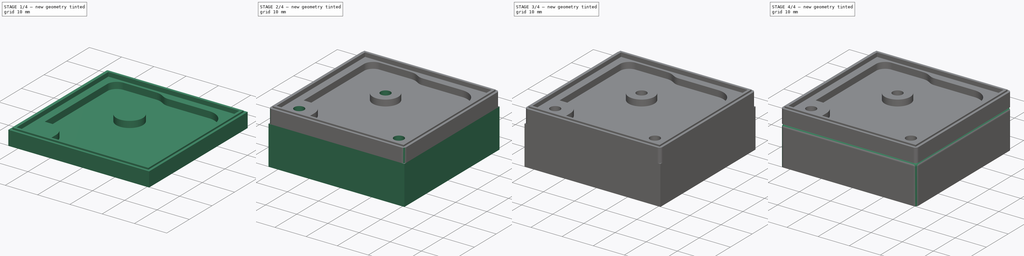
[diagram: build sequence overview — one tinted view per stage of 4, left to right]
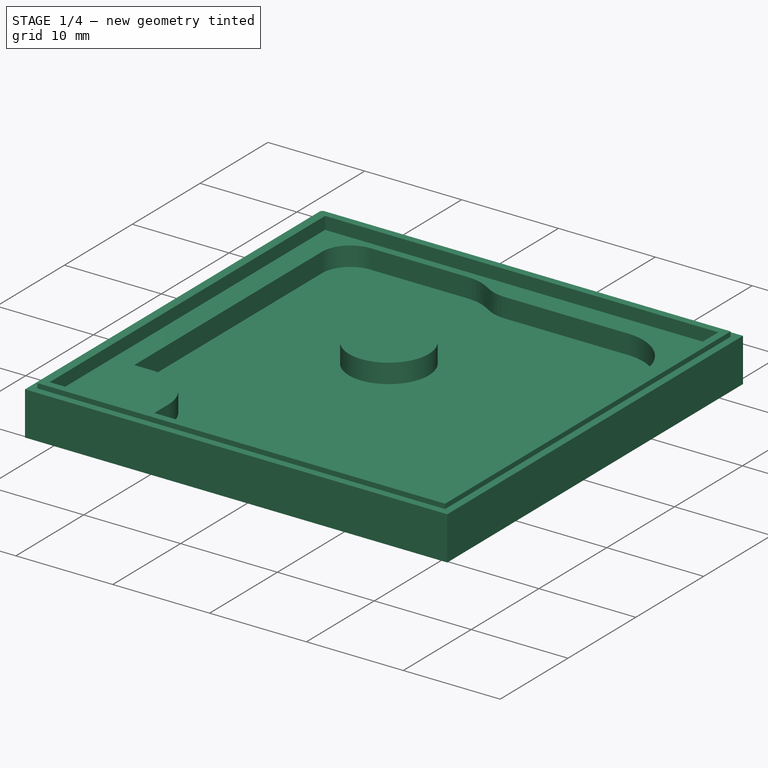
[diagram: stage 1 of 4 — iso view after this stage's code; geometry added in this stage tinted green]
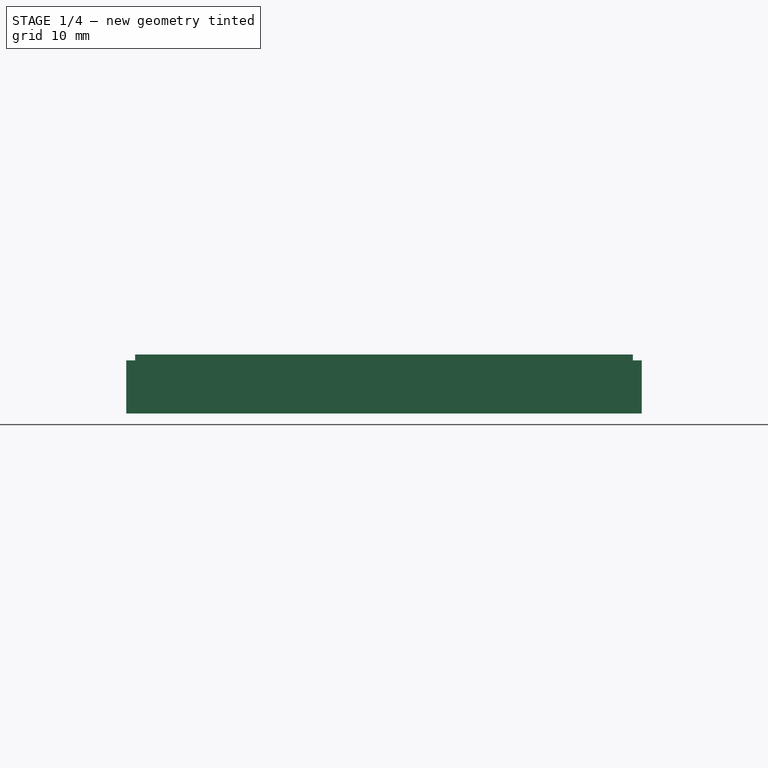
[diagram: stage 1 of 4 — front view after this stage's code; geometry added in this stage tinted green]
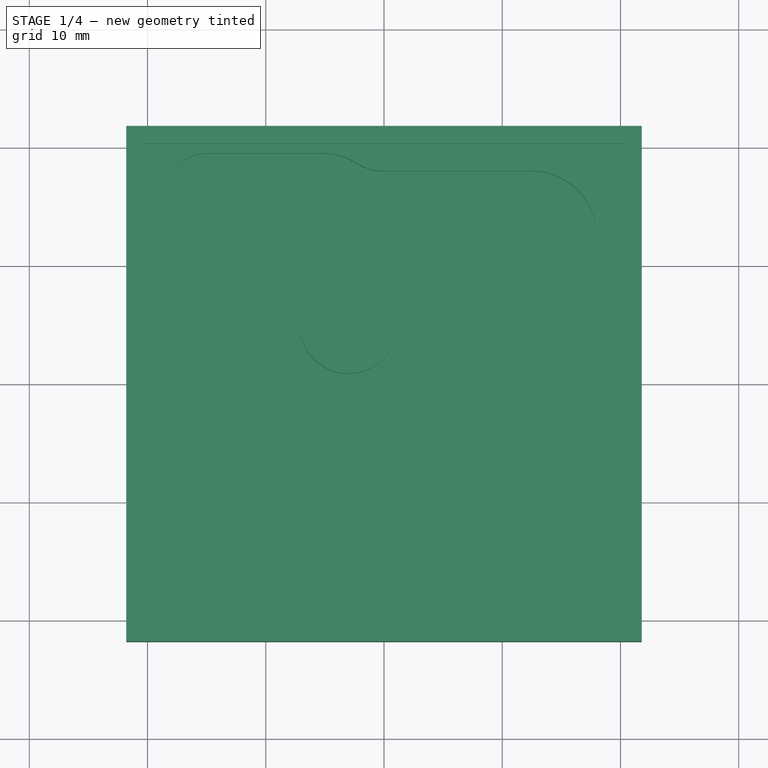
[diagram: stage 1 of 4 — top view after this stage's code; geometry added in this stage tinted green]
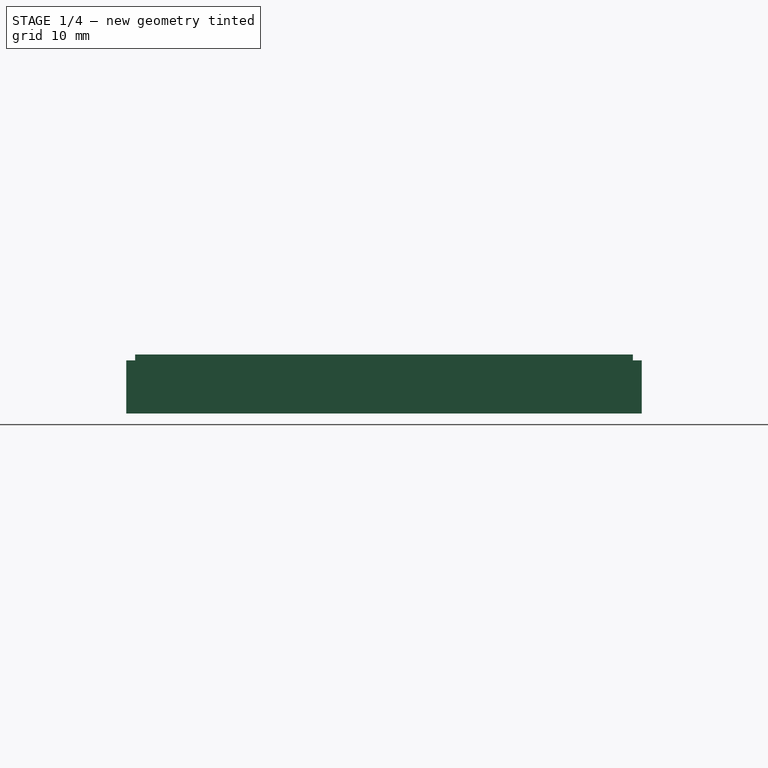
[diagram: stage 1 of 4 — right view after this stage's code; geometry added in this stage tinted green]
FCSTD DOCUMENT  (FreeCAD 1.0R39319 (Git))
Label: PTTButton
License: All rights reserved
LicenseURL: https://en.wikipedia.org/wiki/All_rights_reserved
objects: Part::Feature×75, Sketcher::SketchObject×12, App::Part×9, PartDesign::Pocket×6, PartDesign::Pad×5, PartDesign::Fillet×2, PartDesign::Body×2, Spreadsheet::Sheet×1, PartDesign::Hole×1, PartDesign::CoordinateSystem×1
note: 144 computed .brp shape members not serialized (recipe doc carries the construction recipe); baked Part::Feature solids carry a one-line shape summary decoded from their .brp

FEATURE [Sketcher::SketchObject] Sketch
  ArcFitTolerance = 1e-06
  AttachmentSupport = -> [XY_Plane012]
  FullyConstrained = true
  MakeInternals = false
  MapMode = 5
  expr: Constraints[8] = 40 mm + Spreadsheet.Tolleranz * 2 + Spreadsheet.Materialstaerke * 2
  expr: Constraints[9] = 40 mm + Spreadsheet.Tolleranz * 2 + Spreadsheet.Materialstaerke * 2
  sketch-geometry (9):
    g0: LineSegment StartX=-21.8 StartY=31.8 StartZ=0 EndX=-21.8 EndY=-11.8 EndZ=0
    g1: LineSegment StartX=-21.8 StartY=-11.8 StartZ=0 EndX=21.8 EndY=-11.8 EndZ=0
    g2: LineSegment StartX=21.8 StartY=-11.8 StartZ=0 EndX=21.8 EndY=31.8 EndZ=0
    g3: LineSegment StartX=21.8 StartY=31.8 StartZ=0 EndX=-21.8 EndY=31.8 EndZ=0
    g4: LineSegment [constr] StartX=-20 StartY=30 StartZ=0 EndX=-20 EndY=-10 EndZ=0
    g5: LineSegment [constr] StartX=-20 StartY=-10 StartZ=0 EndX=20 EndY=-10 EndZ=0
    g6: LineSegment [constr] StartX=20 StartY=-10 StartZ=0 EndX=20 EndY=30 EndZ=0
    g7: LineSegment [constr] StartX=20 StartY=30 StartZ=0 EndX=-20 EndY=30 EndZ=0
    g8: LineSegment [constr] StartX=-50 StartY=10 StartZ=0 EndX=50 EndY=10 EndZ=0
  constraints (24):
    c: Coincident(g0,g1)
    c: Coincident(g1,g2)
    c: Coincident(g2,g3)
    c: Coincident(g3,g0)
    c: Horizontal(g1)
    c: Vertical(g6)
    c: DistanceX(g-1,g4) = -20
    c: DistanceX(g5,g5) = 40
    c: DistanceX(g3,g3) = 43.6
    c: DistanceY(g0,g0) = 43.6
    c: Symmetric(g0,g2,g-2)
    c: DistanceY(g-1,g8) = 10
    c: Symmetric(g8,g8,g-2)
    c: DistanceX(g8,g8) = 100
    c: Symmetric(g0,g0,g8)
    c: Coincident(g4,g7)
    c: Coincident(g6,g7)
    c: Coincident(g5,g6)
    c: Coincident(g4,g5)
    c: Horizontal(g7)
    c: Horizontal(g5)
    c: Symmetric(g4,g4,g8)
    c: DistanceY(g4,g4) = 40
    c: Vertical(g2)
FEATURE [PartDesign::Pad] Pad
  Direction = (0,0,1)
  Length = 4.5
  Length2 = 10
  Profile = -> Sketch
  ReferenceAxis = -> Sketch [N_Axis]
  Refine = true
  Suppressed = false
  Type = 0
  expr: Length = Spreadsheet.Materialstaerke + 4 mm - 1 mm
FEATURE [Spreadsheet::Sheet] Spreadsheet
  cells = A1='Materialstärke; B1(Materialstaerke)==1.5 mm; A2='Höhe; B2(Hoehe)==10 mm; A3='PCB Tolleranz; B3(Tolleranz)==0.3 mm; A4='Insert Durchmesser; B4(Insert)==4.4 mm; A5='Insert Wanddicke; B5(InsertWidth)==2 mm; A6='Schraubenruchmesser; B6(Schraubendurchmesser)==3.2 mm; A7='Insert Tiefe; B7(InsertTiefe)==6 mm
FEATURE [Sketcher::SketchObject] Sketch004
  ArcFitTolerance = 1e-06
  AttachmentSupport = -> [Pocket001]
  ExternalGeometry = -> [Pocket001]
  FullyConstrained = false
  MakeInternals = false
  MapMode = 5
  Placement = pos=(-2.6e-15,31.8,0) rot=(0,0.707107,0.707107;3.14159rad)
  sketch-geometry (12):
    g0: LineSegment StartX=-17.4558 StartY=-5.07723 StartZ=0 EndX=-17.4558 EndY=-12.5 EndZ=0
    g1: LineSegment StartX=-2.55581 StartY=-12.5 StartZ=0 EndX=-2.55581 EndY=-5.07723 EndZ=0
    g2: LineSegment StartX=5.35849 StartY=-9.5 StartZ=0 EndX=5.35849 EndY=-12.5 EndZ=0
    g3: LineSegment StartX=5.35849 StartY=-12.5 StartZ=0 EndX=14.6585 EndY=-12.5 EndZ=0
    g4: LineSegment StartX=14.6585 StartY=-12.5 StartZ=0 EndX=14.6585 EndY=-9.5 EndZ=0
    g5: LineSegment StartX=13.1585 StartY=-8 StartZ=0 EndX=6.85849 EndY=-8 EndZ=0
    g6: ArcOfCircle CenterX=6.85849 CenterY=-9.5 CenterZ=0 NormalX=0 NormalY=0 NormalZ=1 AngleXU=0 Radius=1.5 StartAngle=1.5708 EndAngle=3.14159
    g7: ArcOfCircle CenterX=13.1585 CenterY=-9.5 CenterZ=0 NormalX=0 NormalY=0 NormalZ=1 AngleXU=0 Radius=1.5 StartAngle=0 EndAngle=1.5708
    g8: LineSegment StartX=-17.4558 StartY=-12.5 StartZ=0 EndX=-2.55581 EndY=-12.5 EndZ=0
    g9: ArcOfCircle CenterX=-4.13304 CenterY=-5.07723 CenterZ=0 NormalX=0 NormalY=0 NormalZ=1 AngleXU=0 Radius=1.57723 StartAngle=0 EndAngle=1.5708
    g10: ArcOfCircle CenterX=-15.8786 CenterY=-5.07723 CenterZ=0 NormalX=0 NormalY=0 NormalZ=1 AngleXU=0 Radius=1.57723 StartAngle=1.5708 EndAngle=3.14159
    g11: LineSegment StartX=-15.8786 StartY=-3.5 StartZ=0 EndX=-4.13304 EndY=-3.5 EndZ=0
  constraints (29):
    c: Vertical(g0)
    c: Vertical(g1)
    c: Coincident(g2,g3)
    c: Coincident(g3,g4)
    c: Vertical(g2)
    c: Vertical(g4)
    c: Horizontal(g3)
    c: Horizontal(g5)
    c: PointOnObject(g3,g-3)
    c: Tangent(g2,g6) = -1.5708
    c: Tangent(g5,g6) = -1.5708
    c: Tangent(g5,g7) = -1.5708
    c: Tangent(g4,g7) = -1.5708
    c: PointOnObject(g1,g-3)
    c: PointOnObject(g0,g-3)
    c: Coincident(g8,g0)
    c: Coincident(g8,g1)
    c: Horizontal(g6,g7)
    c: DistanceX(g2,g4) = 9.3
    c: Radius(g6) = 1.5
    c: DistanceX(g0,g1) = 14.9
    c: DistanceY(g5,g-1) = 8
    c: DistanceY(g9,g-1) = 3.5
    c: Tangent(g9,g1) = -1.5708
    c: Horizontal(g11)
    c: Tangent(g11,g9) = 1.5708
    c: Equal(g10,g9)
    c: Tangent(g0,g10) = -1.5708
    c: Tangent(g11,g10) = 1.5708
FEATURE [Sketcher::SketchObject] Sketch005
  ArcFitTolerance = 1e-06
  AttachmentSupport = -> [Pad]
  ExternalGeometry = -> [Pad]
  FullyConstrained = true
  MakeInternals = false
  MapMode = 5
  Placement = pos=(0,0,4.5) rot=(0,0,1;0rad)
  expr: Constraints[12] = Spreadsheet.Materialstaerke
  expr: Constraints[7] = Spreadsheet.Materialstaerke
  sketch-geometry (5):
    g0: LineSegment StartX=-20.3 StartY=-10.3 StartZ=0 EndX=-20.3 EndY=30.3 EndZ=0
    g1: LineSegment StartX=-20.3 StartY=30.3 StartZ=0 EndX=20.3 EndY=30.3 EndZ=0
    g2: LineSegment StartX=20.3 StartY=30.3 StartZ=0 EndX=20.3 EndY=-10.3 EndZ=0
    g3: LineSegment StartX=20.3 StartY=-10.3 StartZ=0 EndX=-20.3 EndY=-10.3 EndZ=0
    g4: LineSegment [constr] StartX=-50 StartY=10 StartZ=0 EndX=50 EndY=10 EndZ=0
  constraints (13):
    c: Coincident(g0,g1)
    c: Coincident(g1,g2)
    c: Coincident(g2,g3)
    c: Coincident(g3,g0)
    c: Vertical(g2)
    c: Horizontal(g1)
    c: Symmetric(g2,g0,g-2)
    c: DistanceX(g2,g-5) = 1.5
    c: Distance(g4) = 100
    c: Symmetric(g4,g4,g-2)
    c: DistanceY(g-1,g4) = 10
    c: Symmetric(g0,g0,g4)
    c: DistanceY(g0,g-4) = 1.5
FEATURE [PartDesign::Pocket] Pocket003
  BaseFeature = -> Pad
  Direction = (0,0,-1)
  Length = 0.8
  Length2 = 5
  Profile = -> Sketch005
  ReferenceAxis = -> Sketch005 [N_Axis]
  Refine = true
  Suppressed = false
  Type = 0
  expr: Length = 0.8 mm
FEATURE [Sketcher::SketchObject] Sketch010
  ArcFitTolerance = 1e-06
  AttachmentSupport = -> [Pocket003]
  ExternalGeometry = -> [Pocket003]
  FullyConstrained = true
  MakeInternals = false
  MapMode = 5
  Placement = pos=(0,0,4.5) rot=(0,0,1;0rad)
  expr: Constraints[10] = Spreadsheet.Materialstaerke / 2
  expr: Constraints[8] = Spreadsheet.Materialstaerke / 2
  expr: Constraints[9] = Spreadsheet.Materialstaerke / 2
  sketch-geometry (8):
    g0: LineSegment StartX=-21.05 StartY=31.05 StartZ=0 EndX=-21.05 EndY=-11.05 EndZ=0
    g1: LineSegment StartX=-21.05 StartY=-11.05 StartZ=0 EndX=21.05 EndY=-11.05 EndZ=0
    g2: LineSegment StartX=21.05 StartY=-11.05 StartZ=0 EndX=21.05 EndY=31.05 EndZ=0
    g3: LineSegment StartX=21.05 StartY=31.05 StartZ=0 EndX=-21.05 EndY=31.05 EndZ=0
    g4: LineSegment StartX=-20.3 StartY=30.3 StartZ=0 EndX=-20.3 EndY=-10.3 EndZ=0
    g5: LineSegment StartX=-20.3 StartY=-10.3 StartZ=0 EndX=20.3 EndY=-10.3 EndZ=0
    g6: LineSegment StartX=20.3 StartY=-10.3 StartZ=0 EndX=20.3 EndY=30.3 EndZ=0
    g7: LineSegment StartX=20.3 StartY=30.3 StartZ=0 EndX=-20.3 EndY=30.3 EndZ=0
  constraints (21):
    c: Coincident(g0,g1)
    c: Coincident(g1,g2)
    c: Coincident(g2,g3)
    c: Coincident(g3,g0)
    c: Vertical(g0)
    c: Vertical(g2)
    c: Horizontal(g1)
    c: Symmetric(g0,g2,g-2)
    c: DistanceX(g-4,g0) = 0.75
    c: DistanceY(g2,g-6) = 0.75
    c: DistanceY(g-6,g1) = 0.75
    c: Coincident(g4,g5)
    c: Coincident(g5,g6)
    c: Coincident(g6,g7)
    c: Coincident(g7,g4)
    c: Vertical(g4)
    c: Vertical(g6)
    c: Horizontal(g5)
    c: Horizontal(g7)
    c: Coincident(g4,g-8)
    c: Coincident(g5,g-10)
FEATURE [PartDesign::Pad] Pad002  label="Kante001"
  BaseFeature = -> Pocket003
  Direction = (0,0,1)
  Length = 0.5
  Length2 = 10
  Profile = -> Sketch010
  ReferenceAxis = -> Sketch010 [N_Axis]
  Refine = true
  Suppressed = false
  Type = 0
FEATURE [PartDesign::Pocket] Pocket007
  BaseFeature = -> Pad002
  Direction = (0,0,-1)
  Length = 2
  Length2 = 5
  Profile = -> Sketch006
  ReferenceAxis = -> Sketch006 [N_Axis]
  Refine = true
  Suppressed = false
  Type = 0
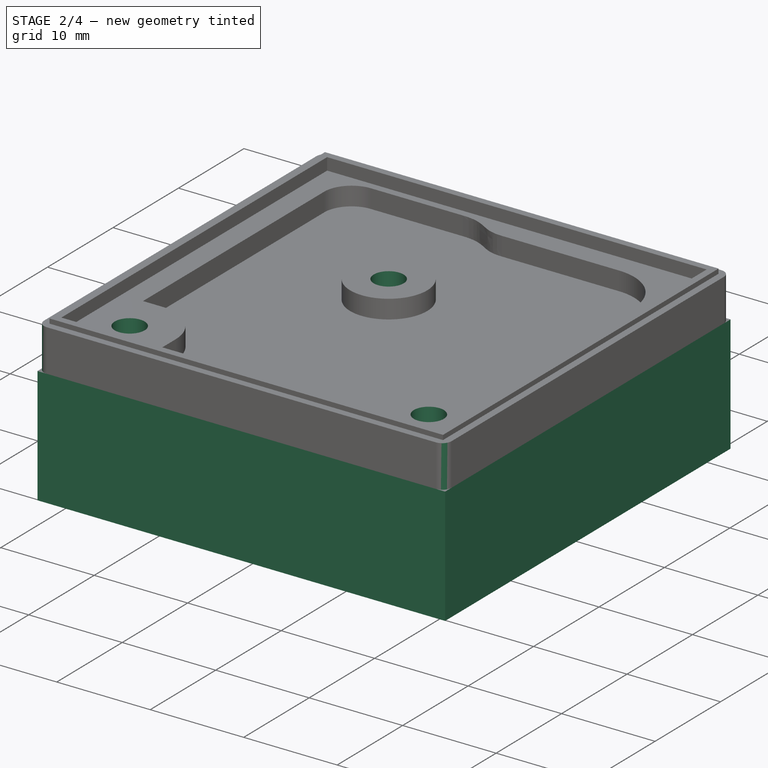
[diagram: stage 2 of 4 — iso view after this stage's code; geometry added in this stage tinted green]
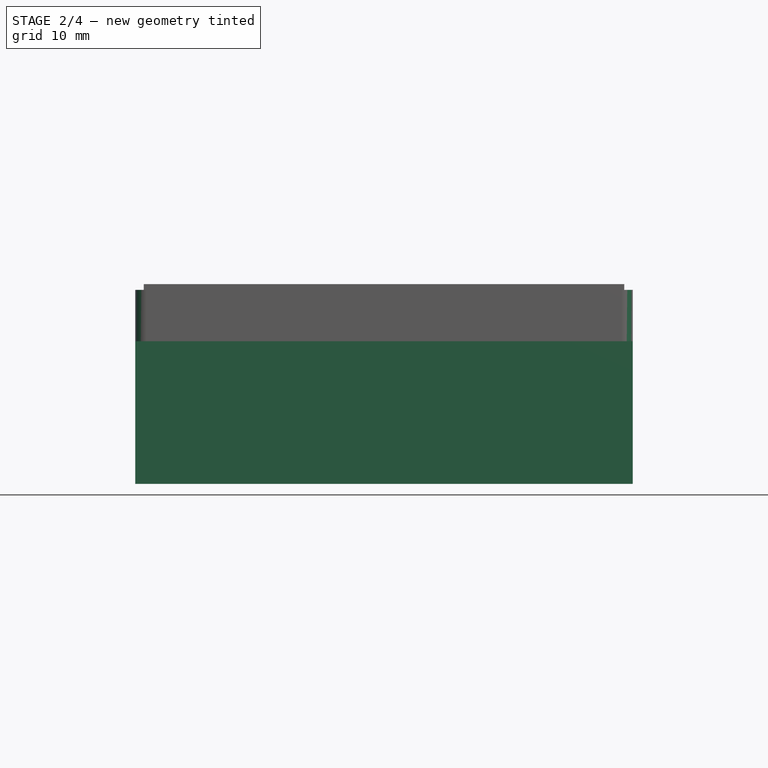
[diagram: stage 2 of 4 — front view after this stage's code; geometry added in this stage tinted green]
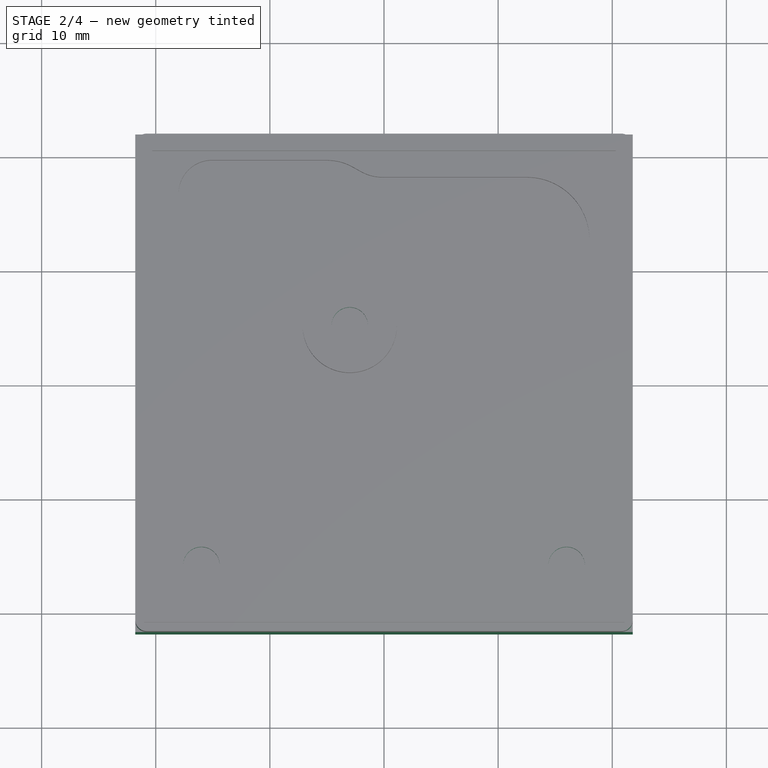
[diagram: stage 2 of 4 — top view after this stage's code; geometry added in this stage tinted green]
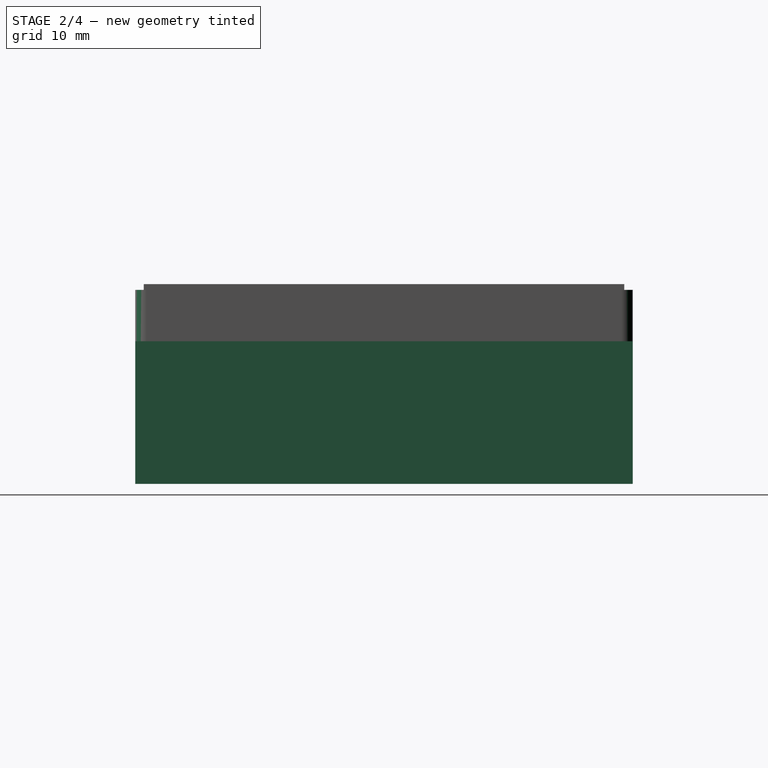
[diagram: stage 2 of 4 — right view after this stage's code; geometry added in this stage tinted green]
FEATURE [Sketcher::SketchObject] Sketch001
  ArcFitTolerance = 1e-06
  AttachmentSupport = -> [XY_Plane013]
  FullyConstrained = true
  MakeInternals = false
  MapMode = 5
  expr: Constraints[18] = 40 mm + Spreadsheet.Tolleranz * 2 + Spreadsheet.Materialstaerke * 2
  expr: Constraints[19] = 40 mm + Spreadsheet.Tolleranz * 2 + Spreadsheet.Materialstaerke * 2
  sketch-geometry (9):
    g0: LineSegment StartX=-21.8 StartY=31.8 StartZ=0 EndX=-21.8 EndY=-11.8 EndZ=0
    g1: LineSegment StartX=-21.8 StartY=-11.8 StartZ=0 EndX=21.8 EndY=-11.8 EndZ=0
    g2: LineSegment StartX=21.8 StartY=-11.8 StartZ=0 EndX=21.8 EndY=31.8 EndZ=0
    g3: LineSegment StartX=21.8 StartY=31.8 StartZ=0 EndX=-21.8 EndY=31.8 EndZ=0
    g4: LineSegment [constr] StartX=-20 StartY=30 StartZ=0 EndX=-20 EndY=-10 EndZ=0
    g5: LineSegment [constr] StartX=-20 StartY=-10 StartZ=0 EndX=20 EndY=-10 EndZ=0
    g6: LineSegment [constr] StartX=20 StartY=-10 StartZ=0 EndX=20 EndY=30 EndZ=0
    g7: LineSegment [constr] StartX=20 StartY=30 StartZ=0 EndX=-20 EndY=30 EndZ=0
    g8: LineSegment [constr] StartX=-50 StartY=10 StartZ=0 EndX=50 EndY=10 EndZ=0
  constraints (25):
    c: Coincident(g0,g1)
    c: Coincident(g1,g2)
    c: Coincident(g2,g3)
    c: Coincident(g3,g0)
    c: Vertical(g2)
    c: Horizontal(g1)
    c: Coincident(g4,g5)
    c: Coincident(g5,g6)
    c: Coincident(g6,g7)
    c: Coincident(g7,g4)
    c: Vertical(g4)
    c: Vertical(g6)
    c: Horizontal(g5)
    c: Horizontal(g7)
    c: DistanceX(g-1,g4) = -20
    c: DistanceX(g5,g5) = 40
    c: DistanceY(g6,g6) = 40
    c: DistanceY(g4) = -10
    c: DistanceX(g3,g3) = 43.6
    c: DistanceY(g0,g0) = 43.6
    c: Symmetric(g0,g2,g-2)
    c: DistanceY(g-1,g8) = 10
    c: Symmetric(g8,g8,g-2)
    c: DistanceX(g8,g8) = 100
    c: Symmetric(g0,g0,g8)
FEATURE [PartDesign::Pad] Pad001  label="Block"
  Direction = (0,0,1)
  Length = 12.5
  Length2 = 10
  Profile = -> Sketch001
  ReferenceAxis = -> Sketch001 [N_Axis]
  Refine = true
  Reversed = true
  Suppressed = false
  Type = 0
  expr: Length = Spreadsheet.Hoehe + Spreadsheet.Materialstaerke + 1 mm
FEATURE [PartDesign::Hole] Hole
  BaseFeature = -> Pocket007
  CustomThreadClearance = 0
  Depth = 25
  DepthType = 0
  Diameter = 3.2
  DrillForDepth = false
  DrillPoint = 1
  DrillPointAngle = 118
  HoleCutCountersinkAngle = 70
  HoleCutCustomValues = false
  HoleCutDepth = 0
  HoleCutDiameter = 6
  HoleCutType = 2
  ModelThread = false
  Profile = -> Sketch007
  Refine = true
  Suppressed = false
  Tapered = false
  TaperedAngle = 90
  ThreadClass = 0
  ThreadDepth = 25
  ThreadDepthType = 0
  ThreadDirection = 0
  ThreadFit = 0
  ThreadSize = 0
  ThreadType = 0
  Threaded = false
  UseCustomThreadClearance = false
  expr: Diameter = Spreadsheet.Schraubendurchmesser
FEATURE [PartDesign::Body] Body001  label="Gehäuseoberteil"
  AllowCompound = false
  Group = -> [Sketch001,Pad001,Sketch002,Pocket,Sketch003,Pocket001,Sketch004,Sketch008,Sketch009,Pocket005,Pocket006,Pad003,Pad004,Fillet]
  Origin = -> Origin013
  Placement = pos=(0,0,11.5) rot=(0,0,1;0rad)
  Tip = -> Fillet
  expr: .Placement.Base.z = Spreadsheet.Hoehe + Spreadsheet.Materialstaerke
FEATURE [PartDesign::Fillet] Fillet001
  Base = -> Hole [Edge2,Edge8,Edge5,Edge1]
  BaseFeature = -> Hole
  Radius = 1
  Refine = true
  SupportTransform = false
  Suppressed = false
  UseAllEdges = false
FEATURE [PartDesign::Body] Body  label="Gehäuseunterteil"
  AllowCompound = false
  Group = -> [Sketch,Pad,Sketch005,Pocket003,Sketch006,Sketch007,Sketch010,Pad002,Pocket007,Hole,Fillet001]
  Origin = -> Origin012
  Placement = pos=(0,0,-5.5) rot=(0,0,1;0rad)
  Tip = -> Fillet001
  expr: .Placement.Base.z = -Spreadsheet.Materialstaerke - 4 mm
FEATURE [PartDesign::CoordinateSystem] Local_CS_26ce
  AttacherType = Attacher::AttachEngine3D
  MapMode = 2
FEATURE [Part::Feature] Pcb_26ce
  Placement = pos=(-100,80,0) rot=(0,0,1;0rad)
  shape: bbox 40 x 40 x 1.6 mm, 42 faces (baked)
FEATURE [Sketcher::SketchObject] PCB_Sketch_26ce
  ArcFitTolerance = 1e-06
  FullyConstrained = false
  MakeInternals = false
  sketch-geometry (4):
    g0: LineSegment StartX=-20 StartY=30 StartZ=0 EndX=20 EndY=30 EndZ=0
    g1: LineSegment StartX=20 StartY=30 StartZ=0 EndX=20 EndY=-10 EndZ=0
    g2: LineSegment StartX=20 StartY=-10 StartZ=0 EndX=-20 EndY=-10 EndZ=0
    g3: LineSegment StartX=-20 StartY=-10 StartZ=0 EndX=-20 EndY=30 EndZ=0
  constraints (4):
    c: Coincident(g2,g3)
    c: Coincident(g0,g3)
    c: Coincident(g1,g2)
    c: Coincident(g0,g1)
FEATURE [App::Part] Board_Geoms_26ce
  Group = -> [Pcb_26ce,PCB_Sketch_26ce]
  Origin = -> Origin
FEATURE [Part::Feature] Part__Feature  label="part"
  shape: bbox 0.2045 x 0.2045 x 0.003 mm, 3 faces (baked)
FEATURE [Part::Feature] Part__Feature001  label="part001"
  shape: bbox 4.09 x 4.09 x 1.6 mm, 6 faces (baked)
FEATURE [Part::Feature] Part__Feature002  label="part002"
  shape: bbox 0.508 x 0.304 x 0.051 mm, 6 faces (baked)
FEATURE [Part::Feature] Part__Feature003  label="part003"
  shape: bbox 0.508 x 0.304 x 0.051 mm, 6 faces (baked)
FEATURE [Part::Feature] Part__Feature004  label="part004"
  shape: bbox 0.508 x 0.304 x 0.051 mm, 6 faces (baked)
FEATURE [Part::Feature] Part__Feature005  label="part005"
  shape: bbox 0.508 x 0.304 x 0.051 mm, 6 faces (baked)
FEATURE [Part::Feature] Part__Feature006  label="part006"
  shape: bbox 0.508 x 0.304 x 0.051 mm, 6 faces (baked)
FEATURE [Part::Feature] Part__Feature007  label="part007"
  shape: bbox 0.508 x 0.304 x 0.051 mm, 6 faces (baked)
FEATURE [Part::Feature] Part__Feature008  label="part008"
  shape: bbox 0.304 x 0.508 x 0.051 mm, 6 faces (baked)
FEATURE [Part::Feature] Part__Feature009  label="part009"
  shape: bbox 0.304 x 0.508 x 0.051 mm, 6 faces (baked)
FEATURE [Part::Feature] Part__Feature010  label="part010"
  shape: bbox 0.304 x 0.508 x 0.051 mm, 6 faces (baked)
FEATURE [Part::Feature] Part__Feature011  label="part011"
  shape: bbox 0.304 x 0.508 x 0.051 mm, 6 faces (baked)
FEATURE [Part::Feature] Part__Feature012  label="part012"
  shape: bbox 0.304 x 0.508 x 0.051 mm, 6 faces (baked)
FEATURE [Part::Feature] Part__Feature013  label="part013"
  shape: bbox 0.304 x 0.508 x 0.051 mm, 6 faces (baked)
FEATURE [Part::Feature] Part__Feature014  label="part014"
  shape: bbox 0.508 x 0.304 x 0.051 mm, 6 faces (baked)
FEATURE [Part::Feature] Part__Feature015  label="part015"
  shape: bbox 0.508 x 0.304 x 0.051 mm, 6 faces (baked)
FEATURE [Part::Feature] Part__Feature016  label="part016"
  shape: bbox 0.508 x 0.304 x 0.051 mm, 6 faces (baked)
FEATURE [Part::Feature] Part__Feature017  label="part017"
  shape: bbox 0.508 x 0.304 x 0.051 mm, 6 faces (baked)
FEATURE [Part::Feature] Part__Feature018  label="part018"
  shape: bbox 0.508 x 0.304 x 0.051 mm, 6 faces (baked)
FEATURE [Part::Feature] Part__Feature019  label="part019"
  shape: bbox 0.508 x 0.304 x 0.051 mm, 6 faces (baked)
FEATURE [Part::Feature] Part__Feature020  label="part020"
  shape: bbox 0.304 x 0.508 x 0.051 mm, 6 faces (baked)
FEATURE [Part::Feature] Part__Feature021  label="part021"
  shape: bbox 0.304 x 0.508 x 0.051 mm, 6 faces (baked)
FEATURE [Part::Feature] Part__Feature022  label="part022"
  shape: bbox 0.304 x 0.508 x 0.051 mm, 6 faces (baked)
FEATURE [Part::Feature] Part__Feature023  label="part023"
  shape: bbox 0.304 x 0.508 x 0.051 mm, 6 faces (baked)
FEATURE [Part::Feature] Part__Feature024  label="part024"
  shape: bbox 0.304 x 0.508 x 0.051 mm, 6 faces (baked)
FEATURE [Part::Feature] Part__Feature025  label="part025"
  shape: bbox 0.304 x 0.508 x 0.051 mm, 6 faces (baked)
FEATURE [Part::Feature] Part__Feature026  label="part026"
  shape: bbox 2.49 x 2.49 x 0.051 mm, 6 faces (baked)
FEATURE [App::Part] part  label="U4_part027_ac8224001030"
  Group = -> [Part__Feature,Part__Feature001,Part__Feature002,Part__Feature003,Part__Feature004,Part__Feature005,Part__Feature006,Part__Feature007,Part__Feature008,Part__Feature009,Part__Feature010,Part__Feature011,Part__Feature012,Part__Feature013,Part__Feature014,Part__Feature015,Part__Feature016,Part__Feature017,Part__Feature018,Part__Feature019,Part__Feature020,Part__Feature021,Part__Feature022,+4 more]
  Origin = -> Origin008
  Placement = pos=(10.4,3.7843,0) rot=(0,0,1;1.5708rad)
FEATURE [Part::Feature] Part__Feature027  label="TYPE-C-31-M-12"
  Placement = pos=(-2e-16,0,-1.3525) rot=(0,0,1;0rad)
  shape: bbox 0.25 x 0.05 x 2.38 mm, 6 faces (baked)
FEATURE [Part::Feature] Part__Feature028  label="TYPE-C-31-M-013"
  Placement = pos=(-2e-16,0,-1.3525) rot=(0,0,1;0rad)
  shape: bbox 0.25 x 0.05 x 1.88 mm, 6 faces (baked)
FEATURE [Part::Feature] Part__Feature029  label="TYPE-C-31-M-014"
  Placement = pos=(-2e-16,0,-1.3525) rot=(0,0,1;0rad)
  shape: bbox 0.25 x 0.05 x 1.88 mm, 6 faces (baked)
FEATURE [Part::Feature] Part__Feature030  label="TYPE-C-31-M-015"
  Placement = pos=(-2e-16,0,-1.3525) rot=(0,0,1;0rad)
  shape: bbox 0.25 x 0.05 x 1.88 mm, 6 faces (baked)
FEATURE [Part::Feature] Part__Feature031  label="TYPE-C-31-M-016"
  Placement = pos=(-2e-16,0,-1.3525) rot=(0,0,1;0rad)
  shape: bbox 0.25 x 0.05 x 1.88 mm, 6 faces (baked)
FEATURE [Part::Feature] Part__Feature032  label="TYPE-C-31-M-017"
  Placement = pos=(-2e-16,0,-1.3525) rot=(0,0,1;0rad)
  shape: bbox 0.25 x 0.05 x 2.38 mm, 6 faces (baked)
FEATURE [Part::Feature] Part__Feature033  label="TYPE-C-31-M-018"
  Placement = pos=(-2e-16,0,-1.3525) rot=(0,0,1;0rad)
  shape: bbox 0.25 x 0.05 x 1.88 mm, 6 faces (baked)
FEATURE [Part::Feature] Part__Feature034  label="TYPE-C-31-M-019"
  Placement = pos=(-2e-16,0,-1.3525) rot=(0,0,1;0rad)
  shape: bbox 0.25 x 0.05 x 2.38 mm, 6 faces (baked)
FEATURE [Part::Feature] Part__Feature035  label="TYPE-C-31-M-020"
  Placement = pos=(-2e-16,0,-1.3525) rot=(0,0,1;0rad)
  shape: bbox 0.25 x 0.05 x 1.88 mm, 6 faces (baked)
FEATURE [Part::Feature] Part__Feature036  label="TYPE-C-31-M-021"
  Placement = pos=(-2e-16,0,-1.3525) rot=(0,0,1;0rad)
  shape: bbox 0.25 x 0.05 x 1.88 mm, 6 faces (baked)
FEATURE [Part::Feature] Part__Feature037  label="TYPE-C-31-M-022"
  Placement = pos=(-2e-16,0,-1.3525) rot=(0,0,1;0rad)
  shape: bbox 0.25 x 0.05 x 1.88 mm, 6 faces (baked)
FEATURE [Part::Feature] Part__Feature038  label="TYPE-C-31-M-023"
  Placement = pos=(-2e-16,0,-1.3525) rot=(0,0,1;0rad)
  shape: bbox 0.25 x 0.05 x 2.38 mm, 6 faces (baked)
FEATURE [Part::Feature] Part__Feature039  label="TYPE-C-31-M-024"
  Placement = pos=(-2e-16,0,-1.3525) rot=(0,0,1;0rad)
  shape: bbox 0.25 x 0.05 x 1.88 mm, 6 faces (baked)
FEATURE [Part::Feature] Part__Feature040  label="TYPE-C-31-M-025"
  Placement = pos=(-2e-16,0,-1.3525) rot=(0,0,1;0rad)
  shape: bbox 0.25 x 0.05 x 1.88 mm, 6 faces (baked)
FEATURE [Part::Feature] Part__Feature041  label="TYPE-C-31-M-026"
  Placement = pos=(-2e-16,0,-1.3525) rot=(0,0,1;0rad)
  shape: bbox 0.25 x 0.05 x 1.88 mm, 6 faces (baked)
FEATURE [Part::Feature] Part__Feature042  label="TYPE-C-31-M-027"
  Placement = pos=(-2e-16,0,-1.3525) rot=(0,0,1;0rad)
  shape: bbox 0.25 x 0.05 x 2.38 mm, 6 faces (baked)
FEATURE [Part::Feature] Part__Feature043  label="TYPE-C-31-M-028"
  Placement = pos=(-2e-16,0,-1.3525) rot=(0,0,1;0rad)
  shape: bbox 0.25 x 0.05 x 1.88 mm, 6 faces (baked)
FEATURE [Part::Feature] Part__Feature044  label="TYPE-C-31-M-029"
  Placement = pos=(-2e-16,0,-1.3525) rot=(0,0,1;0rad)
  shape: bbox 0.25 x 0.05 x 1.88 mm, 6 faces (baked)
FEATURE [Part::Feature] Part__Feature045  label="TYPE-C-31-M-030"
  Placement = pos=(-2e-16,0,-1.3525) rot=(0,0,1;0rad)
  shape: bbox 0.25 x 0.05 x 2.38 mm, 6 faces (baked)
FEATURE [Part::Feature] Part__Feature046  label="TYPE-C-31-M-031"
  Placement = pos=(-2e-16,0,-1.3525) rot=(0,0,1;0rad)
  shape: bbox 0.25 x 0.05 x 1.88 mm, 6 faces (baked)
FEATURE [Part::Feature] Part__Feature047  label="TYPE-C-31-M-032"
  Placement = pos=(-2e-16,0,-1.3525) rot=(0,0,1;0rad)
  shape: bbox 0.25 x 0.05 x 1.88 mm, 6 faces (baked)
FEATURE [Part::Feature] Part__Feature048  label="TYPE-C-31-M-033"
  Placement = pos=(-2e-16,0,-1.3525) rot=(0,0,1;0rad)
  shape: bbox 0.25 x 0.05 x 1.88 mm, 6 faces (baked)
FEATURE [Part::Feature] Part__Feature049  label="TYPE-C-31-M-034"
  Placement = pos=(-2e-16,0,-1.3525) rot=(0,0,1;0rad)
  shape: bbox 0.25 x 0.05 x 2.38 mm, 6 faces (baked)
FEATURE [Part::Feature] Part__Feature050  label="TYPE-C-31-M-035"
  Placement = pos=(-2e-16,0,-1.3525) rot=(0,0,1;0rad)
  shape: bbox 0.25 x 0.05 x 2.38 mm, 6 faces (baked)
FEATURE [Part::Feature] Part__Feature051  label="TYPE-C-31-M-036"
  Placement = pos=(-2e-16,0,-1.3525) rot=(0,0,1;0rad)
  shape: bbox 0.2 x 0.2 x 1 mm, 6 faces (baked)
FEATURE [Part::Feature] Part__Feature052  label="TYPE-C-31-M-037"
  Placement = pos=(-2e-16,0,-1.3525) rot=(0,0,1;0rad)
  shape: bbox 0.2 x 0.2 x 1 mm, 6 faces (baked)
FEATURE [Part::Feature] Part__Feature053  label="TYPE-C-31-M-038"
  Placement = pos=(-2e-16,0,-1.3525) rot=(0,0,1;0rad)
  shape: bbox 0.2 x 0.2 x 1 mm, 6 faces (baked)
FEATURE [Part::Feature] Part__Feature054  label="TYPE-C-31-M-039"
  Placement = pos=(-2e-16,0,-1.3525) rot=(0,0,1;0rad)
  shape: bbox 0.2 x 0.2 x 1 mm, 6 faces (baked)
FEATURE [Part::Feature] Part__Feature055  label="TYPE-C-31-M-040"
  Placement = pos=(-2e-16,0,-1.3525) rot=(0,0,1;0rad)
  shape: bbox 0.2 x 0.2 x 1 mm, 6 faces (baked)
FEATURE [Part::Feature] Part__Feature056  label="TYPE-C-31-M-041"
  Placement = pos=(-2e-16,0,-1.3525) rot=(0,0,1;0rad)
  shape: bbox 0.2 x 0.2 x 1 mm, 6 faces (baked)
FEATURE [Part::Feature] Part__Feature057  label="TYPE-C-31-M-042"
  Placement = pos=(-2e-16,0,-1.3525) rot=(0,0,1;0rad)
  shape: bbox 0.2 x 0.2 x 1 mm, 6 faces (baked)
FEATURE [Part::Feature] Part__Feature058  label="TYPE-C-31-M-043"
  Placement = pos=(-2e-16,0,-1.3525) rot=(0,0,1;0rad)
  shape: bbox 0.2 x 0.2 x 1 mm, 6 faces (baked)
FEATURE [Part::Feature] Part__Feature059  label="TYPE-C-31-M-044"
  Placement = pos=(-2e-16,0,-1.3525) rot=(0,0,1;0rad)
  shape: bbox 0.2 x 0.2 x 1 mm, 6 faces (baked)
FEATURE [Part::Feature] Part__Feature060  label="TYPE-C-31-M-045"
  Placement = pos=(-2e-16,0,-1.3525) rot=(0,0,1;0rad)
  shape: bbox 0.2 x 0.2 x 1 mm, 6 faces (baked)
FEATURE [Part::Feature] Part__Feature061  label="TYPE-C-31-M-046"
  Placement = pos=(-2e-16,0,-1.3525) rot=(0,0,1;0rad)
  shape: bbox 0.2 x 0.2 x 1 mm, 6 faces (baked)
FEATURE [Part::Feature] Part__Feature062  label="TYPE-C-31-M-047"
  Placement = pos=(-2e-16,0,-1.3525) rot=(0,0,1;0rad)
  shape: bbox 0.2 x 0.2 x 1 mm, 6 faces (baked)
FEATURE [Part::Feature] Part__Feature063  label="TYPE-C-31-M-048"
  Placement = pos=(-2e-16,0,-1.3525) rot=(0,0,1;0rad)
  shape: bbox 0.2 x 0.2 x 1 mm, 6 faces (baked)
FEATURE [Part::Feature] Part__Feature064  label="TYPE-C-31-M-049"
  Placement = pos=(-2e-16,0,-1.3525) rot=(0,0,1;0rad)
  shape: bbox 0.2 x 0.2 x 1 mm, 6 faces (baked)
FEATURE [Part::Feature] Part__Feature065  label="TYPE-C-31-M-050"
  Placement = pos=(-2e-16,0,-1.3525) rot=(0,0,1;0rad)
  shape: bbox 0.2 x 0.2 x 1 mm, 6 faces (baked)
FEATURE [Part::Feature] Part__Feature066  label="TYPE-C-31-M-051"
  Placement = pos=(-2e-16,0,-1.3525) rot=(0,0,1;0rad)
  shape: bbox 0.2 x 0.2 x 1 mm, 6 faces (baked)
FEATURE [Part::Feature] Part__Feature067  label="TYPE-C-31-M-052"
  Placement = pos=(-2e-16,0,-1.3525) rot=(0,0,1;0rad)
  shape: bbox 8.94 x 3.69 x 6.525 mm, 168 faces (baked)
FEATURE [Part::Feature] Part__Feature068  label="TYPE-C-31-M-053"
  Placement = pos=(-2e-16,0,-1.3525) rot=(0,0,1;0rad)
  shape: bbox 8.949 x 4.309 x 7.314 mm, 281 faces (baked)
FEATURE [App::Part] TYPE_C_31_M_12  label="TYPE-C-31-M-054"
  Group = -> [Part__Feature027,Part__Feature028,Part__Feature029,Part__Feature030,Part__Feature031,Part__Feature032,Part__Feature033,Part__Feature034,Part__Feature035,Part__Feature036,Part__Feature037,Part__Feature038,Part__Feature039,Part__Feature040,Part__Feature041,Part__Feature042,Part__Feature043,Part__Feature044,Part__Feature045,Part__Feature046,Part__Feature047,Part__Feature048,Part__Feature049,+19 more]
  Origin = -> Origin009
FEATURE [App::Part] TYPE_C_31_M_013  label="J1_TYPE-C-31-M-055_d8c49f161c96"
  Group = -> [TYPE_C_31_M_12]
  Origin = -> Origin010
  Placement = pos=(-10,27.56,0) rot=(0,0.707107,0.707107;3.14159rad)
FEATURE [Part::Feature] Shape  label="J2_87583-2010BLF_a573260b0f5d"
  Placement = pos=(10,16.4025,0) rot=(0,0.707107,0.707107;3.14159rad)
  shape: bbox 14.5 x 14.89 x 10.37 mm, 881 faces (baked)
FEATURE [App::Part] Top_26ce
  Group = -> [part,TYPE_C_31_M_013,Shape]
  Origin = -> Origin003
FEATURE [Part::Feature] Part__Feature069  label="PG151101S11"
  shape: bbox 10.9 x 3.1 x 5.89 mm, 124 faces (baked)
FEATURE [Part::Feature] Part__Feature070  label="PG151101S012"
  shape: bbox 4.8 x 2.358 x 1.68 mm, 54 faces (baked)
FEATURE [Part::Feature] Part__Feature071  label="PG151101S013"
  shape: bbox 4.8 x 2.358 x 1.68 mm, 54 faces (baked)
FEATURE [App::Part] PG151101S11  label="SW2_PG151101S014_d0f1be47be3c"
  Group = -> [Part__Feature069,Part__Feature070,Part__Feature071]
  Origin = -> Origin011
  Placement = pos=(-0.6,3.8,-1.6) rot=(-1,0,0;1.5708rad)
FEATURE [Part::Feature] Shape001  label="SW2_KS-9 PRO3.0 FWQ_stp_d0f1be47be3c[2]"
  Placement = pos=(158,19.43,13.28) rot=(0,0,1;3.14159rad)
  shape: bbox 15.87 x 20.51 x 18.37 mm, 752 faces (baked)
FEATURE [App::Part] Bot_26ce
  Group = -> [PG151101S11,Shape001]
  Origin = -> Origin004
FEATURE [App::Part] Step_Models_26ce
  Group = -> [Top_26ce,Bot_26ce]
  Origin = -> Origin002
FEATURE [App::Part] Board_26ce  label="PTTButton"
  Group = -> [Local_CS_26ce,Board_Geoms_26ce,Step_Models_26ce]
  Origin = -> Origin001
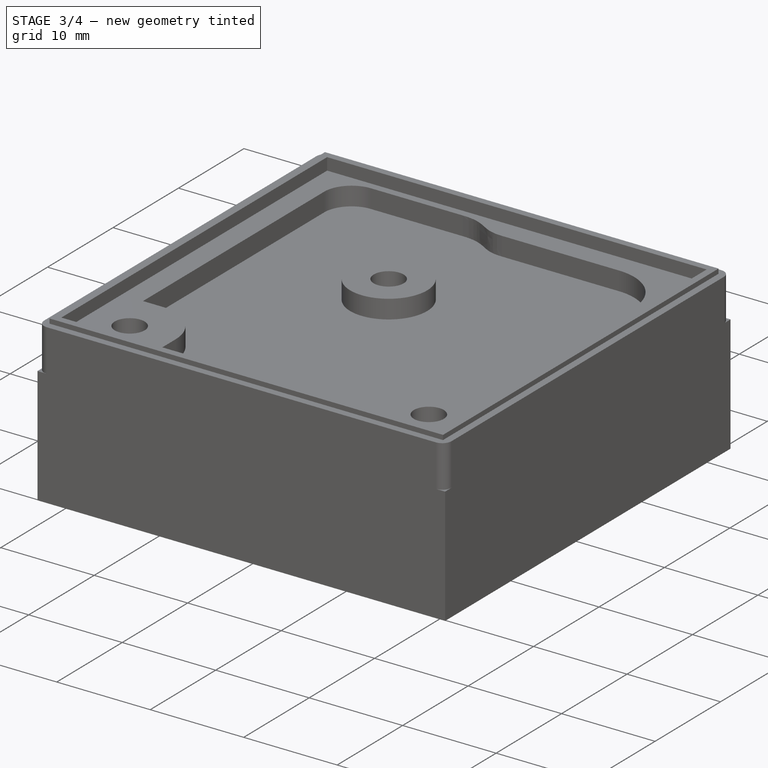
[diagram: stage 3 of 4 — iso view after this stage's code; geometry added in this stage tinted green]
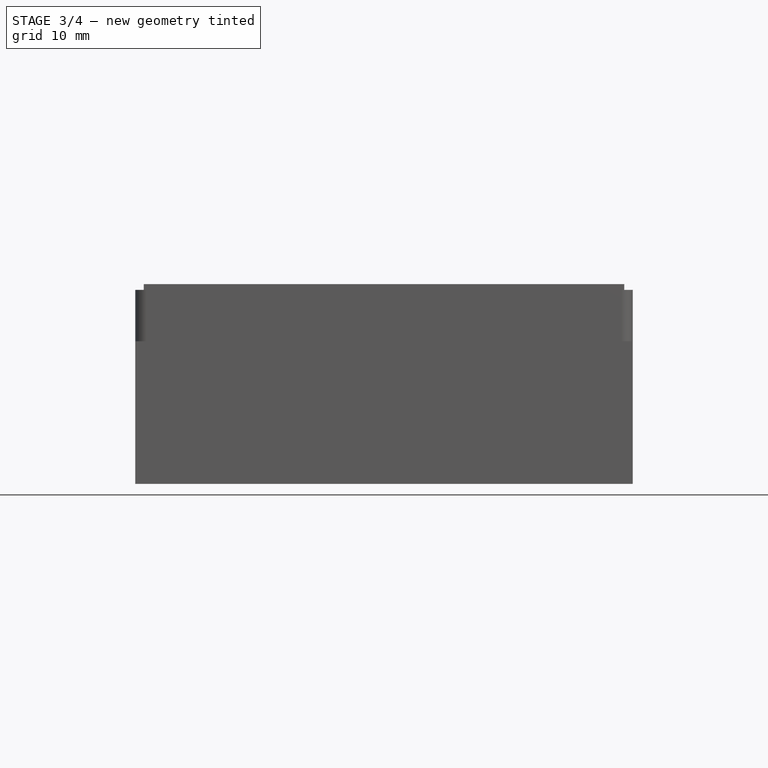
[diagram: stage 3 of 4 — front view after this stage's code; geometry added in this stage tinted green]
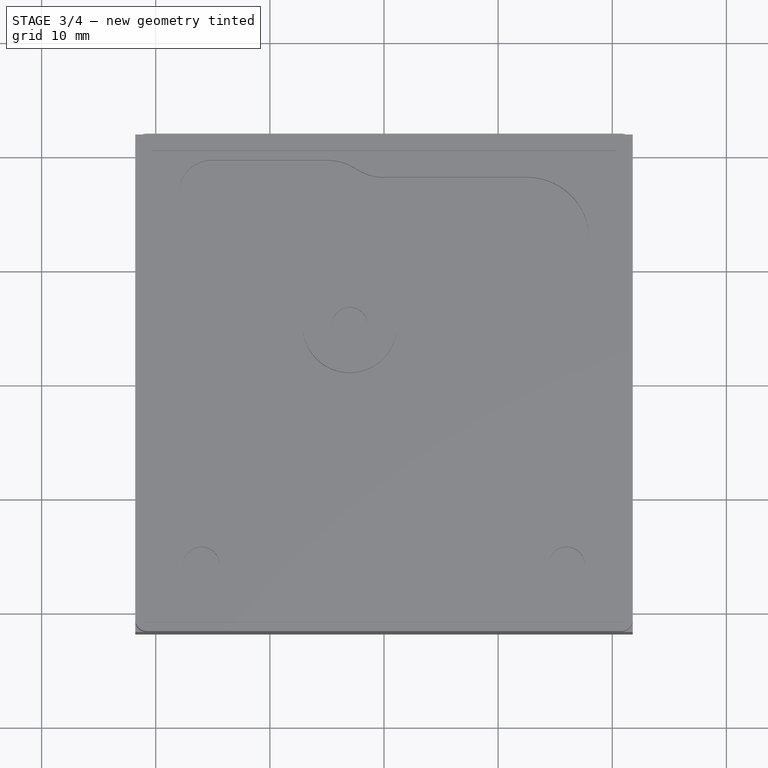
[diagram: stage 3 of 4 — top view after this stage's code; geometry added in this stage tinted green]
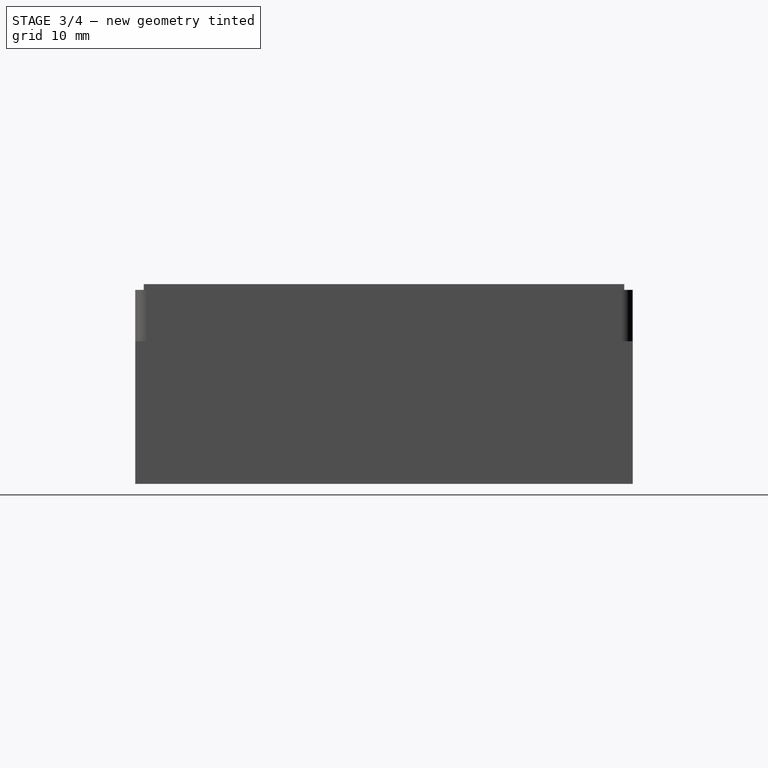
[diagram: stage 3 of 4 — right view after this stage's code; geometry added in this stage tinted green]
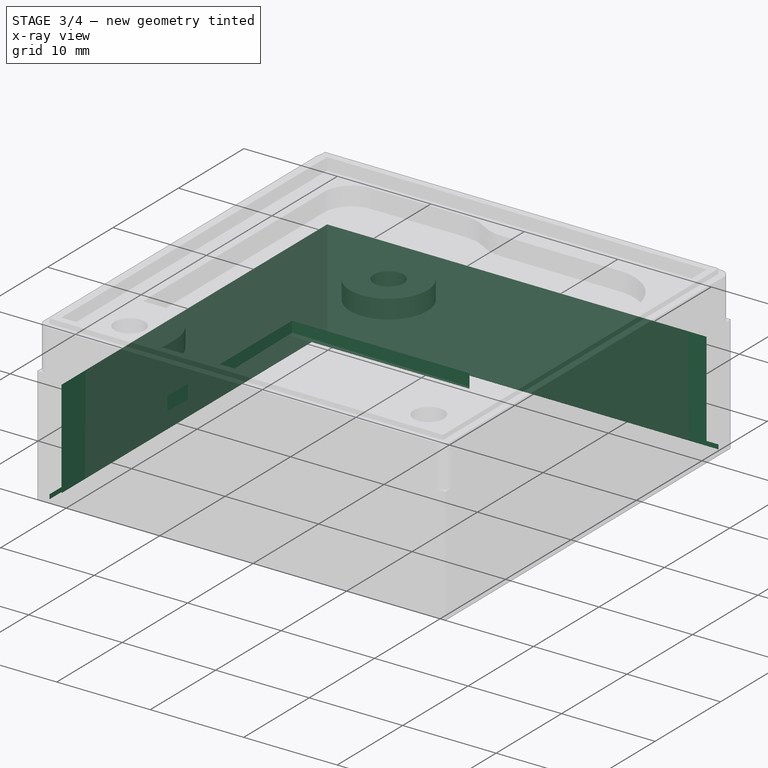
[diagram: stage 3 of 4 — x-ray composite at the iso view; earlier geometry ghosted, this stage's added geometry solid]
FEATURE [Sketcher::SketchObject] Sketch002
  ArcFitTolerance = 1e-06
  AttachmentSupport = -> [Pad001]
  ExternalGeometry = -> [Pad001]
  FullyConstrained = true
  MakeInternals = false
  MapMode = 5
  Placement = pos=(0,0,-12.5) rot=(1,0,0;3.14159rad)
  expr: Constraints[10] = Spreadsheet.Materialstaerke
  expr: Constraints[11] = Spreadsheet.Materialstaerke
  expr: Constraints[8] = Spreadsheet.Materialstaerke
  expr: Constraints[9] = Spreadsheet.Materialstaerke
  sketch-geometry (4):
    g0: LineSegment StartX=-20.3 StartY=10.3 StartZ=0 EndX=-20.3 EndY=-30.3 EndZ=0
    g1: LineSegment StartX=-20.3 StartY=-30.3 StartZ=0 EndX=20.3 EndY=-30.3 EndZ=0
    g2: LineSegment StartX=20.3 StartY=-30.3 StartZ=0 EndX=20.3 EndY=10.3 EndZ=0
    g3: LineSegment StartX=20.3 StartY=10.3 StartZ=0 EndX=-20.3 EndY=10.3 EndZ=0
  constraints (12):
    c: Coincident(g0,g1)
    c: Coincident(g1,g2)
    c: Coincident(g2,g3)
    c: Coincident(g3,g0)
    c: Vertical(g0)
    c: Vertical(g2)
    c: Horizontal(g1)
    c: Horizontal(g3)
    c: Distance(g0,g-4) = 1.5
    c: DistanceX(g2,g-5) = 1.5
    c: DistanceX(g-3,g0) = 1.5
    c: DistanceY(g0,g-3) = 1.5
FEATURE [PartDesign::Pocket] Pocket  label="Hohlblock"
  BaseFeature = -> Pad001
  Direction = (0,0,1)
  Length = 11
  Length2 = 5
  Profile = -> Sketch002
  ReferenceAxis = -> Sketch002 [N_Axis]
  Refine = true
  Suppressed = false
  Type = 0
  expr: Length = Spreadsheet.Hoehe + 1 mm
FEATURE [Sketcher::SketchObject] Sketch003
  ArcFitTolerance = 1e-06
  AttachmentSupport = -> [Pocket]
  FullyConstrained = true
  MakeInternals = false
  MapMode = 5
  sketch-geometry (4):
    g0: LineSegment StartX=-9.5 StartY=9.5 StartZ=0 EndX=-9.5 EndY=-9.5 EndZ=0
    g1: LineSegment StartX=-9.5 StartY=-9.5 StartZ=0 EndX=9.5 EndY=-9.5 EndZ=0
    g2: LineSegment StartX=9.5 StartY=-9.5 StartZ=0 EndX=9.5 EndY=9.5 EndZ=0
    g3: LineSegment StartX=9.5 StartY=9.5 StartZ=0 EndX=-9.5 EndY=9.5 EndZ=0
  constraints (10):
    c: Coincident(g0,g1)
    c: Coincident(g1,g2)
    c: Coincident(g2,g3)
    c: Coincident(g3,g0)
    c: Vertical(g0)
    c: Horizontal(g3)
    c: Distance(g0,g2) = 19
    c: Distance(g1,g3) = 19
    c: Symmetric(g1,g2,g-1)
    c: Symmetric(g0,g1,g-2)
FEATURE [PartDesign::Pocket] Pocket001  label="Button Aussparung"
  BaseFeature = -> Pocket
  Direction = (0,0,-1)
  Length = 1.5
  Length2 = 5
  Profile = -> Sketch003
  ReferenceAxis = -> Sketch003 [N_Axis]
  Refine = true
  Suppressed = false
  Type = 0
  expr: Length = Spreadsheet.Materialstaerke
FEATURE [Sketcher::SketchObject] Sketch006
  ArcFitTolerance = 1e-06
  AttachmentSupport = -> [Pocket003]
  FullyConstrained = false
  MakeInternals = false
  MapMode = 5
  Placement = pos=(0,0,3.7) rot=(0,0,1;0rad)
  sketch-geometry (24):
    g0: LineSegment StartX=-5.20767 StartY=29.4966 StartZ=0 EndX=-15.0713 EndY=29.4966 EndZ=0
    g1: LineSegment StartX=12.5192 StartY=28 StartZ=0 EndX=0.009326 EndY=28 EndZ=0
    g2: LineSegment StartX=-18 StartY=26.5679 StartZ=0 EndX=-18 EndY=-1.11162 EndZ=0
    g3: LineSegment StartX=-18 StartY=-1.11162 StartZ=0 EndX=-16 EndY=-1.11162 EndZ=0
    g4: LineSegment StartX=-11.1116 StartY=-6 StartZ=0 EndX=-11.1116 EndY=-8 EndZ=0
    g5: LineSegment StartX=-11.1116 StartY=-8 StartZ=0 EndX=11.1116 EndY=-8 EndZ=0
    g6: LineSegment StartX=11.1116 StartY=-8 StartZ=0 EndX=11.1116 EndY=-6 EndZ=0
    g7: LineSegment StartX=16 StartY=-1.11162 StartZ=0 EndX=18 EndY=-1.11162 EndZ=0
    g8: LineSegment StartX=18 StartY=-1.11162 StartZ=0 EndX=18 EndY=22.5192 EndZ=0
    g9: Circle CenterX=-3 CenterY=15 CenterZ=0 NormalX=0 NormalY=0 NormalZ=1 AngleXU=0 Radius=4.125
    g10: ArcOfCircle CenterX=12.5192 CenterY=22.5192 CenterZ=0 NormalX=0 NormalY=0 NormalZ=1 AngleXU=0 Radius=5.48081 StartAngle=0 EndAngle=1.5708
    g11: ArcOfCircle CenterX=16 CenterY=-6 CenterZ=0 NormalX=0 NormalY=0 NormalZ=1 AngleXU=0 Radius=4.88838 StartAngle=1.5708 EndAngle=3.14159
    g12: ArcOfCircle CenterX=-16 CenterY=-6 CenterZ=0 NormalX=0 NormalY=0 NormalZ=1 AngleXU=0 Radius=4.88838 StartAngle=0 EndAngle=1.5708
    g13: ArcOfCircle CenterX=-15.0713 CenterY=26.5679 CenterZ=0 NormalX=0 NormalY=0 NormalZ=1 AngleXU=0 Radius=2.92872 StartAngle=1.5708 EndAngle=3.14159
    g14: GeomPoint [constr] X=0.009326 Y=28 Z=0
    g15: GeomPoint [constr] X=-5.20767 Y=29.4966 Z=0
    g16: LineSegment [constr] StartX=34.3078 StartY=10 StartZ=0 EndX=-37.175 EndY=10 EndZ=0
    g17: GeomPoint [constr] X=0.009326 Y=28 Z=0
    g18: GeomPoint [constr] X=-5.20767 Y=29.4966 Z=0
    g19: BSplineCurve PolesCount=4 KnotsCount=2 Degree=3 IsPeriodic=0
    g20-g23: Circle [constr] x4 (B-spline internal-alignment scaffolding for g19; pole/knot coordinates omitted)
  constraints (47):
    c: Horizontal(g7)
    c: Horizontal(g3)
    c: Horizontal(g5)
    c: Horizontal(g1)
    c: Vertical(g8)
    c: Vertical(g2)
    c: Vertical(g4)
    c: Vertical(g6)
    c: Horizontal(g0)
    c: Coincident(g1,g14)
    c: Coincident(g0,g15)
    c: Coincident(g2,g3)
    c: Coincident(g4,g5)
    c: Coincident(g5,g6)
    c: Coincident(g7,g8)
    c: Tangent(g8,g10) = -1.5708
    c: Tangent(g1,g10) = -1.5708
    c: Tangent(g0,g13) = -1.5708
    c: Tangent(g2,g13) = -1.5708
    c: Tangent(g3,g12) = 1.5708
    c: Tangent(g4,g12) = 1.5708
    c: Tangent(g6,g11) = 1.5708
    c: Tangent(g7,g11) = 1.5708
    c: Symmetric(g11,g12,g-2)
    c: DistanceX(g12,g11) = 32
    c: DistanceY(g11,g-1) = 6
    c: Symmetric(g7,g2,g-2)
    c: DistanceX(g2,g7) = 36
    c: DistanceY(g5,g1) = 36
    c: DistanceY(g-1,g16) = 10
    c: Horizontal(g16)
    c: DistanceY(g5,g-1) = 8
    c: InternalAlignment(g17,g19)
    c: InternalAlignment(g18,g19)
    c: InternalAlignment(g20,g19)
    c: Weight(g20) = 1
    c: InternalAlignment(g21,g19)
    c: Equal(g21,g20)
    c: InternalAlignment(g22,g19)
    c: Equal(g22,g20)
    c: InternalAlignment(g23,g19)
    c: Equal(g23,g20)
    c: Coincident(g17,g1)
    c: Coincident(g18,g0)
    c: Horizontal(g22,g19)
    c: Horizontal(g21,g19)
    c: Vertical(g21,g22)
FEATURE [Sketcher::SketchObject] Sketch007
  ArcFitTolerance = 1e-06
  FullyConstrained = true
  MakeInternals = false
  MapMode = 5
  Placement = pos=(0,0,0) rot=(1,0,0;3.14159rad)
  expr: Constraints[4] = Spreadsheet.Schraubendurchmesser
  sketch-geometry (3):
    g0: Circle CenterX=16 CenterY=6 CenterZ=0 NormalX=0 NormalY=0 NormalZ=1 AngleXU=0 Radius=1.6
    g1: Circle CenterX=-16 CenterY=6 CenterZ=0 NormalX=0 NormalY=0 NormalZ=1 AngleXU=0 Radius=1.6
    g2: Circle CenterX=-3 CenterY=-15 CenterZ=0 NormalX=0 NormalY=0 NormalZ=1 AngleXU=0 Radius=1.6
  constraints (8):
    c: DistanceY(g-1,g1) = 6
    c: DistanceX(g1,g0) = 32
    c: Equal(g0,g1)
    c: Equal(g1,g2)
    c: Diameter(g2) = 3.2
    c: Symmetric(g0,g1,g-2)
    c: DistanceY(g2,g-1) = 15
    c: DistanceX(g2,g-1) = 3
FEATURE [Sketcher::SketchObject] Sketch008
  ArcFitTolerance = 1e-06
  AttachmentSupport = -> [Pocket001]
  ExternalGeometry = -> [Pocket001]
  FullyConstrained = true
  MakeInternals = false
  MapMode = 5
  Placement = pos=(0,0,-1.5) rot=(1,0,0;3.14159rad)
  expr: .Constraints.RLinks = Spreadsheet.InsertWidth + Spreadsheet.Insert / 2
  expr: Constraints[0] = Spreadsheet.Insert
  expr: Constraints[16] = Spreadsheet.Insert + Spreadsheet.InsertWidth * 2
  expr: Constraints[28] = Spreadsheet.InsertWidth + Spreadsheet.Insert / 2
  sketch-geometry (14):
    g0: Circle CenterX=-16 CenterY=6 CenterZ=0 NormalX=0 NormalY=0 NormalZ=1 AngleXU=0 Radius=2.2
    g1: Circle CenterX=16 CenterY=6 CenterZ=0 NormalX=0 NormalY=0 NormalZ=1 AngleXU=0 Radius=2.2
    g2: Circle CenterX=-3 CenterY=-15 CenterZ=0 NormalX=0 NormalY=0 NormalZ=1 AngleXU=0 Radius=4.2
    g3: Circle CenterX=-3 CenterY=-15 CenterZ=0 NormalX=0 NormalY=0 NormalZ=1 AngleXU=0 Radius=2.2
    g4: ArcOfCircle CenterX=-16 CenterY=6 CenterZ=0 NormalX=0 NormalY=0 NormalZ=1 AngleXU=0 Radius=4.2 StartAngle=4.71239 EndAngle=6.28319
    g5: LineSegment StartX=-11.8 StartY=6 StartZ=0 EndX=-11.8 EndY=10.3 EndZ=0
    g6: LineSegment StartX=-16 StartY=1.8 StartZ=0 EndX=-20.3 EndY=1.8 EndZ=0
    g7: LineSegment StartX=-20.3 StartY=10.3 StartZ=0 EndX=-20.3 EndY=1.8 EndZ=0
    g8: LineSegment StartX=-20.3 StartY=10.3 StartZ=0 EndX=-11.8 EndY=10.3 EndZ=0
    g9: ArcOfCircle CenterX=16 CenterY=6 CenterZ=0 NormalX=0 NormalY=0 NormalZ=1 AngleXU=0 Radius=4.2 StartAngle=3.14159 EndAngle=4.71239
    g10: LineSegment StartX=11.8 StartY=6 StartZ=0 EndX=11.8 EndY=10.3 EndZ=0
    g11: LineSegment StartX=11.8 StartY=10.3 StartZ=0 EndX=20.3 EndY=10.3 EndZ=0
    g12: LineSegment StartX=16 StartY=1.8 StartZ=0 EndX=20.3 EndY=1.8 EndZ=0
    g13: LineSegment StartX=20.3 StartY=1.8 StartZ=0 EndX=20.3 EndY=10.3 EndZ=0
  constraints (34):
    c: Diameter(g0) = 4.4
    c: Coincident(g3,g2)
    c: Equal(g0,g3)
    c: Equal(g3,g1)
    c: DistanceY(g2,g-1) = 15
    c: Angle(g4) = 1.5708
    c: Vertical(g5)
    c: PointOnObject(g6,g-4)
    c: Coincident(g7,g-4)
    c: Coincident(g7,g6)
    c: Coincident(g8,g7)
    c: Coincident(g8,g5)
    c: Radius(g4) = 4.2  'RLinks'
    c: Tangent(g5,g4) = -1.5708
    c: Tangent(g6,g4) = 1.5708
    c: Coincident(g4,g0)
    c: Diameter(g2) = 8.4
    c: Angle(g9) = 1.5708
    c: Coincident(g9,g1)
    c: Vertical(g10)
    c: Coincident(g11,g10)
    c: Coincident(g11,g-5)
    c: Horizontal(g11)
    c: PointOnObject(g12,g-5)
    c: Coincident(g13,g12)
    c: Coincident(g13,g11)
    c: Tangent(g10,g9) = 1.5708
    c: Tangent(g12,g9) = -1.5708
    c: Radius(g9) = 4.2
    c: Symmetric(g0,g1,g-2)
    c: DistanceX(g0,g1) = 32
    c: Distance(g0,g-1) = 6
    c: Horizontal(g8)
    c: DistanceX(g2,g-1) = 3
FEATURE [Sketcher::SketchObject] Sketch009
  ArcFitTolerance = 1e-06
  AttachmentSupport = -> [Pocket001]
  ExternalGeometry = -> [Pocket001,Sketch004]
  FullyConstrained = true
  MakeInternals = false
  MapMode = 5
  Placement = pos=(0,0,-12.5) rot=(1,0,0;3.14159rad)
  expr: Constraints[10] = Spreadsheet.Materialstaerke / 2
  expr: Constraints[11] = Spreadsheet.Materialstaerke / 2
  sketch-geometry (5):
    g0: LineSegment StartX=-21.05 StartY=11.05 StartZ=0 EndX=-21.05 EndY=-31.05 EndZ=0
    g1: LineSegment StartX=-21.05 StartY=-31.05 StartZ=0 EndX=21.05 EndY=-31.05 EndZ=0
    g2: LineSegment StartX=21.05 StartY=-31.05 StartZ=0 EndX=21.05 EndY=11.05 EndZ=0
    g3: LineSegment StartX=21.05 StartY=11.05 StartZ=0 EndX=-21.05 EndY=11.05 EndZ=0
    g4: LineSegment [constr] StartX=-34.265 StartY=-10 StartZ=0 EndX=34.265 EndY=-10 EndZ=0
  constraints (13):
    c: Coincident(g0,g1)
    c: Coincident(g1,g2)
    c: Coincident(g2,g3)
    c: Coincident(g3,g0)
    c: Vertical(g2)
    c: Horizontal(g1)
    c: Symmetric(g0,g2,g-2)
    c: DistanceX(g4,g4) = 68.53
    c: DistanceY(g4,g-1) = 10
    c: Symmetric(g0,g0,g4)
    c: DistanceY(g0,g-4) = 0.75
    c: DistanceX(g2,g-7) = 0.75
    c: Symmetric(g4,g4,g-2)
FEATURE [PartDesign::Pocket] Pocket005  label="Kante"
  BaseFeature = -> Pocket001
  Direction = (0,0,1)
  Length = 0.5
  Length2 = 5
  Profile = -> Sketch009
  ReferenceAxis = -> Sketch009 [N_Axis]
  Refine = true
  Suppressed = false
  Type = 0
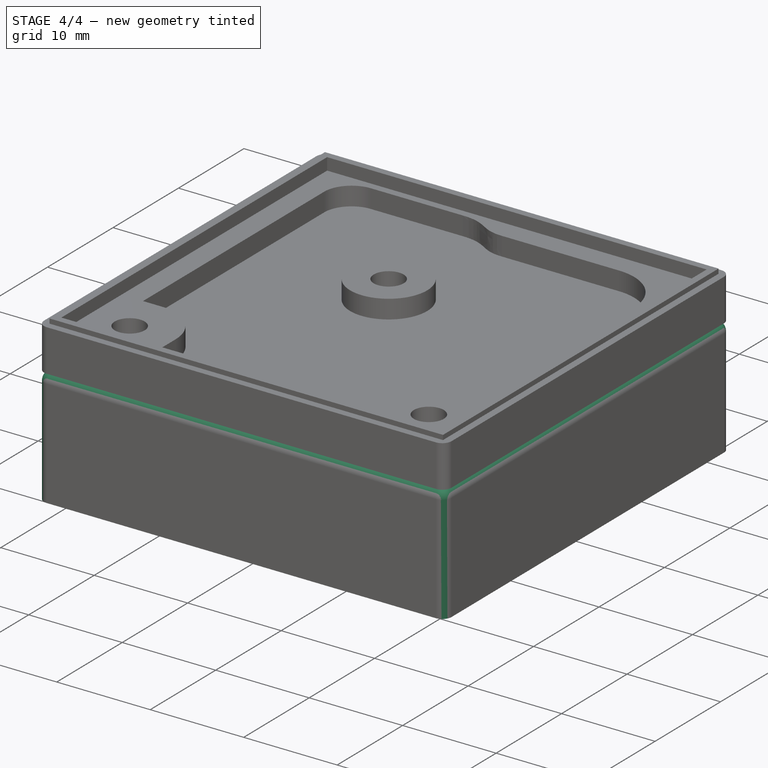
[diagram: stage 4 of 4 — iso view after this stage's code; geometry added in this stage tinted green]
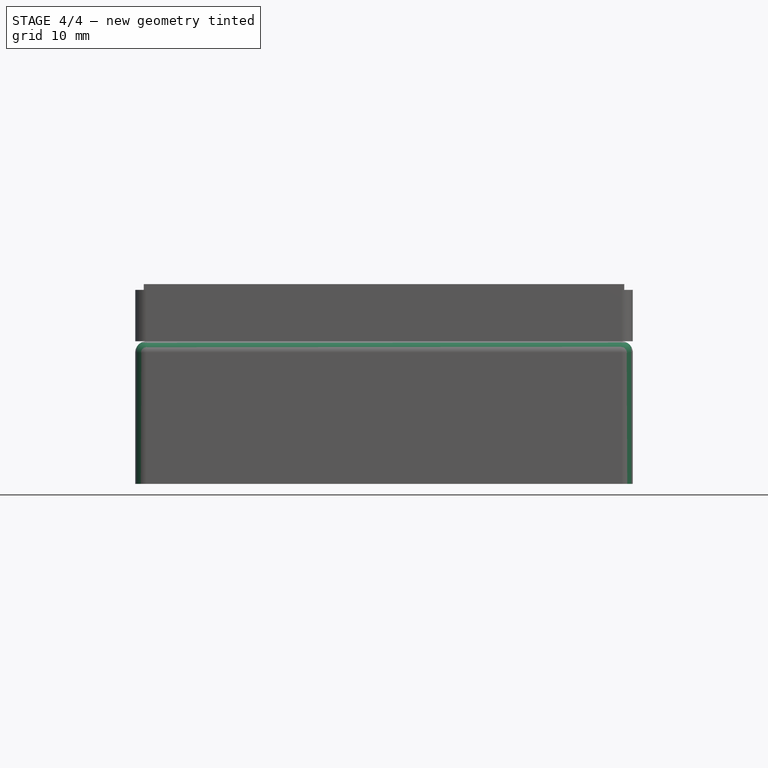
[diagram: stage 4 of 4 — front view after this stage's code; geometry added in this stage tinted green]
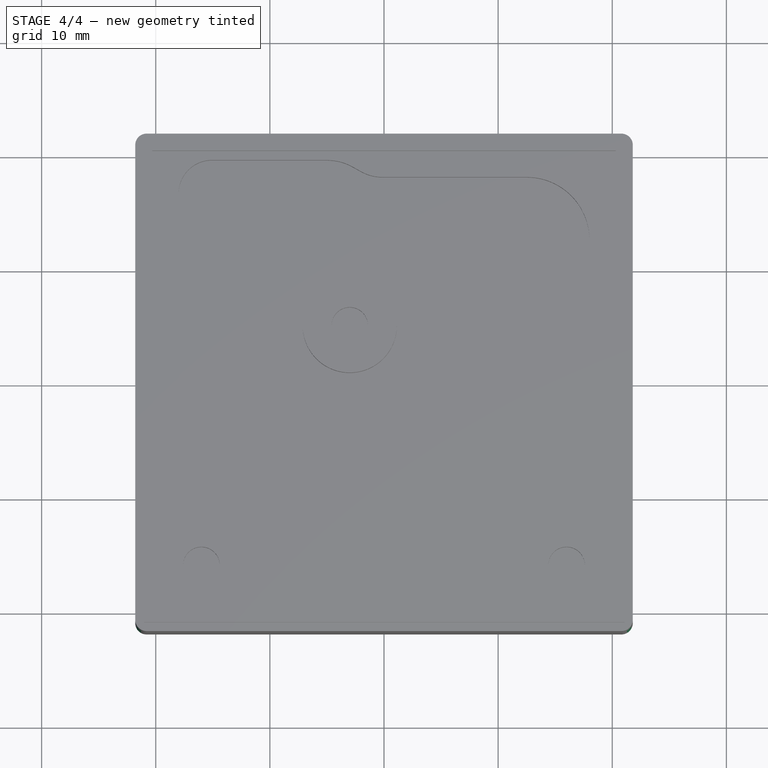
[diagram: stage 4 of 4 — top view after this stage's code; geometry added in this stage tinted green]
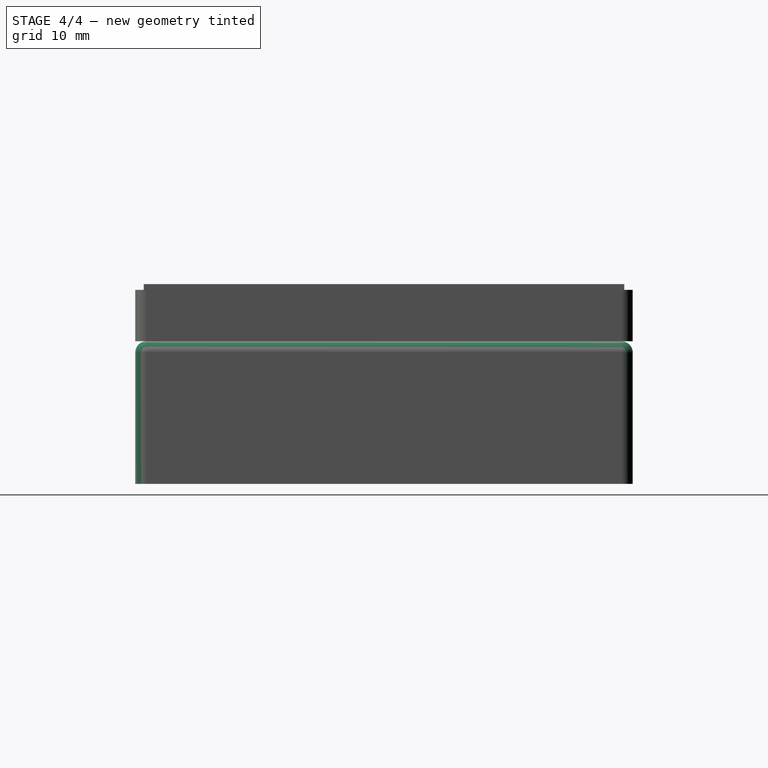
[diagram: stage 4 of 4 — right view after this stage's code; geometry added in this stage tinted green]
FEATURE [PartDesign::Pocket] Pocket006  label="USB"
  BaseFeature = -> Pocket005
  Direction = (0,-1,2e-16)
  Length = 2
  Length2 = 5
  Profile = -> Sketch004
  ReferenceAxis = -> Sketch004 [N_Axis]
  Refine = true
  Suppressed = false
  Type = 0
FEATURE [PartDesign::Pad] Pad003  label="Inserts"
  BaseFeature = -> Pocket006
  Direction = (0,0,-1)
  Length = 10
  Length2 = 10
  Profile = -> Sketch008
  ReferenceAxis = -> Sketch008 [N_Axis]
  Refine = true
  Suppressed = false
  Type = 0
  expr: Length = Spreadsheet.Hoehe
FEATURE [PartDesign::Pad] Pad004  label="InsertTiefe"
  BaseFeature = -> Pad003
  Direction = (0,0,-1)
  Length = 4
  Length2 = 10
  Profile = -> Pad003 [Face50,Face49,Face48]
  Refine = true
  Suppressed = false
  Type = 0
  expr: Length = Spreadsheet.Hoehe - Spreadsheet.InsertTiefe
FEATURE [PartDesign::Fillet] Fillet
  Base = -> Pad004 [Edge2,Edge21,Edge20,Edge23,Edge19,Edge5,Edge3,Edge1]
  BaseFeature = -> Pad004
  Radius = 1
  Refine = true
  SupportTransform = false
  Suppressed = false
  UseAllEdges = false
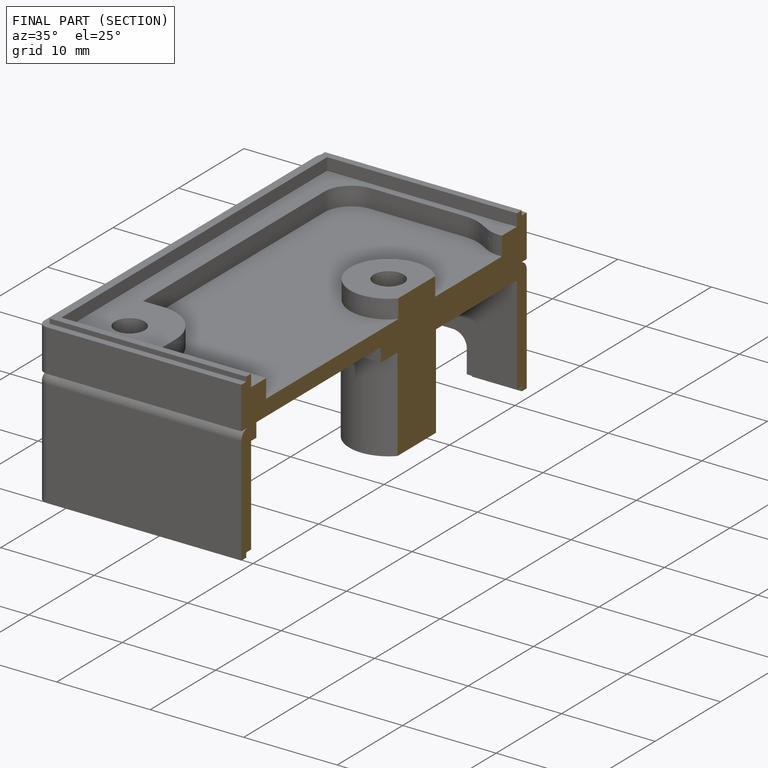
[diagram: finished part — half-section view (interior)]
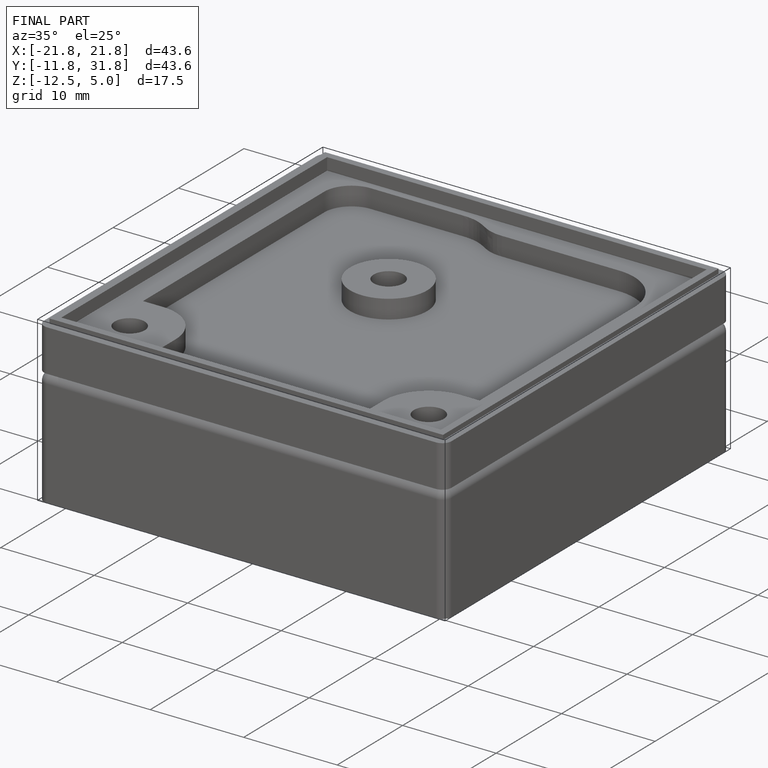
[diagram: finished part — iso view with bounding-box wireframe]
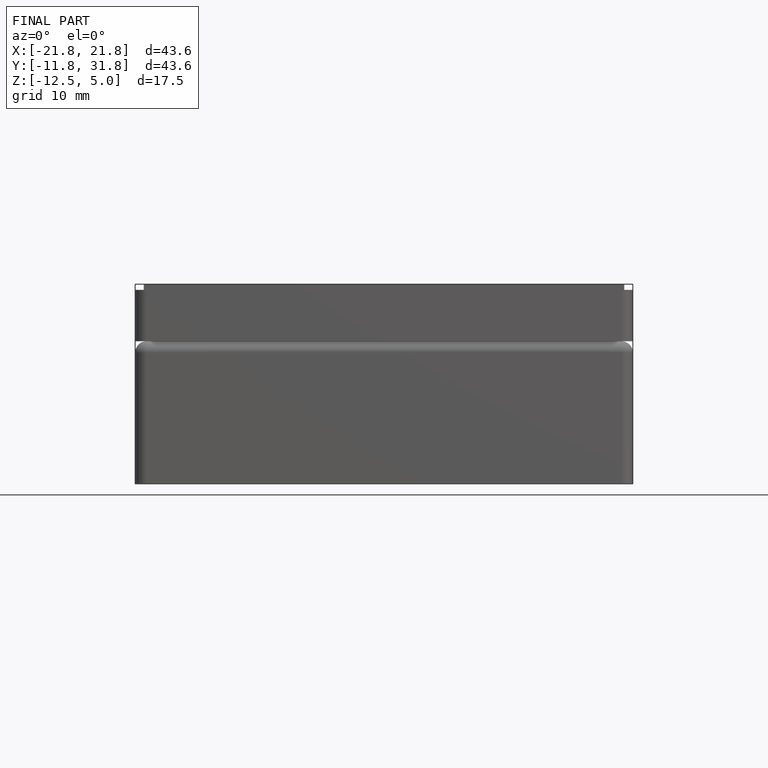
[diagram: finished part — front view with bounding-box wireframe]
